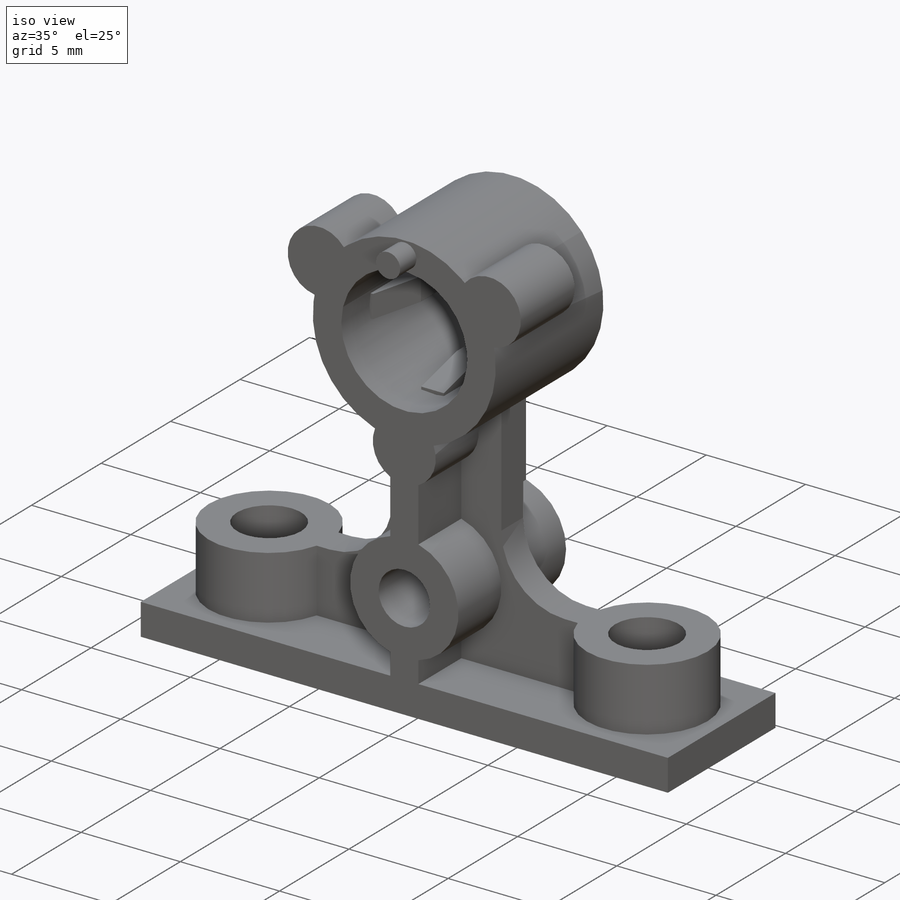
[diagram: iso view]
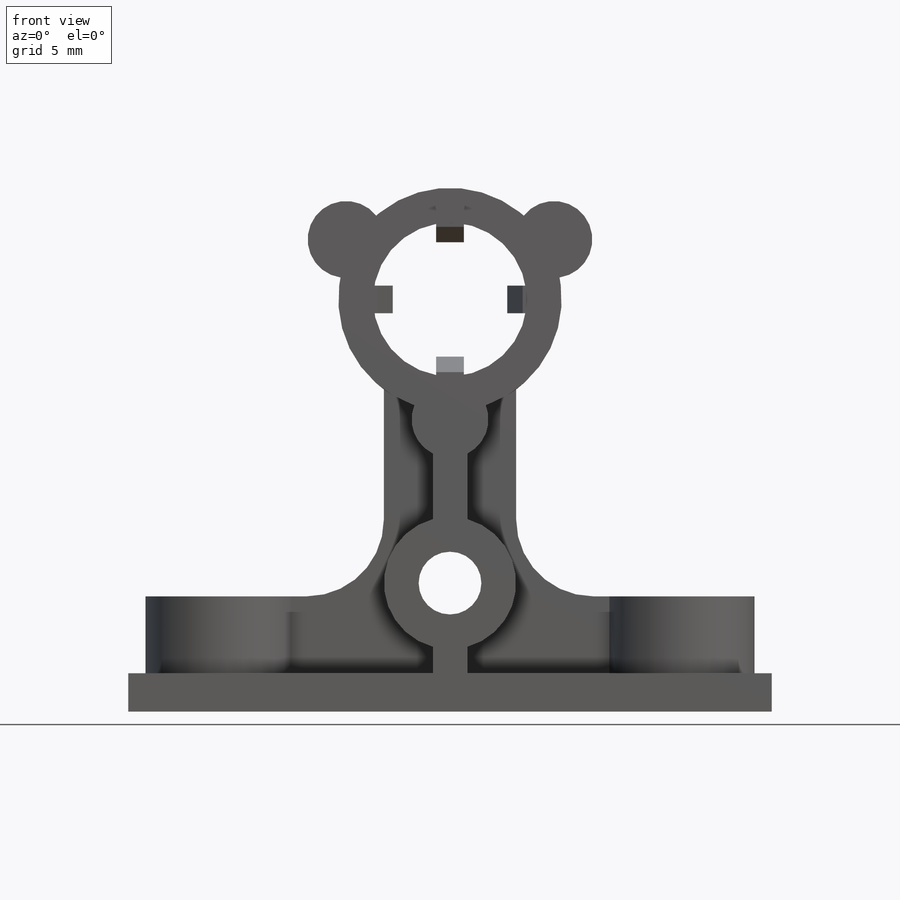
[diagram: front view]
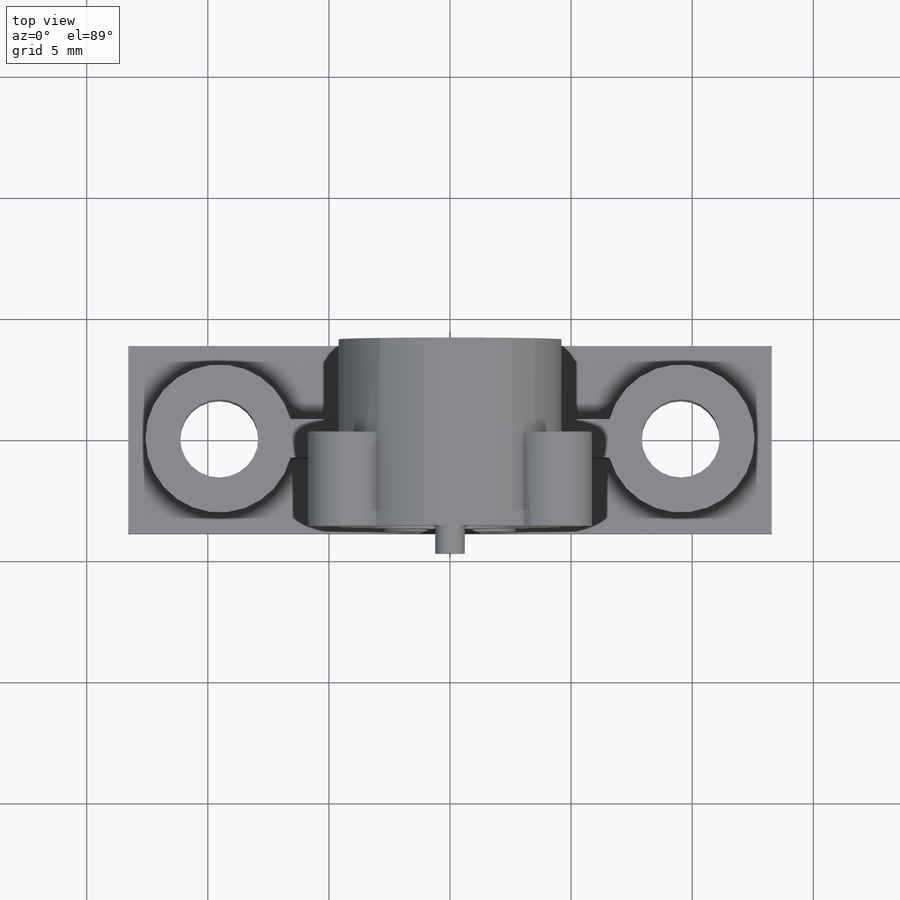
[diagram: top view]
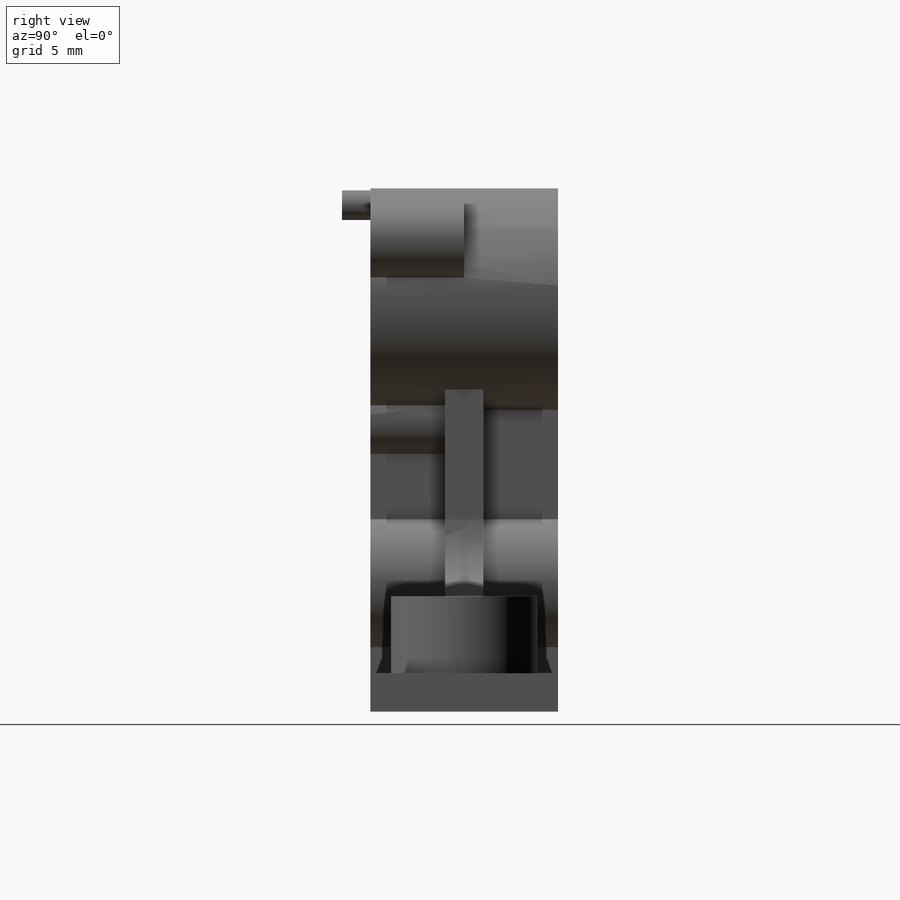
[diagram: right view]
SOLIDWORKS PART (.sldprt)
format: sldprt  version: not decoded by parser v0  size: 389,632 bytes
history: native  units: mm
features: sketch x11, extrude x9, cut_extrude x2, pattern_circular x2, material x1, fillet x1, chamfer x1 (+12 scaffold rows collapsed)
feature tree (39):
  scaffold x12  (default folders/planes/origin — collapsed)
  material  "Material <not specified>"
  sketch  "Sketch1"  dims[D1=1.5875mm D2=26.5684mm]
  extrude  "Boss-Extrude1"  Depth=7.747mm
  sketch  "Sketch3"  dims[D1=1.4224mm D2=12.065mm]
  extrude  "Boss-Extrude2"  Depth=7.747mm
  sketch  "Sketch4"  dims[D1=6.35mm D2=9.2202mm D3=17.018mm]
  extrude  "Boss-Extrude3"  Depth=7.747mm
  sketch  "Sketch5"  dims[D1=5.461mm D2=4.7625mm D3=15.875mm]
  extrude  "Boss-Extrude4"  Depth=1.5748mm
  sketch  "Sketch6"  dims[D1=6.096mm D2=19.05mm]
  extrude  "Boss-Extrude5"  Depth=4.7625mm
  fillet  "Fillet1"  Radius=3.175mm
  sketch  "Sketch7"  dims[D1=5.461mm D2=5.3086mm]
  extrude  "Boss-Extrude6"  [1 undecoded]
  sketch  "Sketch8"  dims[D1=3.2258mm]
  cut_extrude  "Cut-Extrude2"  [1 undecoded]
  sketch  "Sketch9"  dims[D1=2.5908mm]
  cut_extrude  "Cut-Extrude3"  [1 undecoded]
  sketch  "Sketch10"  dims[D1=3.175mm D2=12.065mm]
  extrude  "Boss-Extrude7"  [1 undecoded]
  pattern_circular  "CirPattern1"  Count=3 Angle=360deg
  sketch  "Sketch11"  dims[c1.D1=6.35mm c1.D2=6.35mm c2.D1=~6.997011mm c2.D2=2.3622mm c2.D3=1.143mm]
  extrude  "Boss-Extrude8"  Depth=2.032mm
  chamfer  "Chamfer1"  Distance=2.54mm
  pattern_circular  "CirPattern2"  Count=4 Angle=360deg
  sketch  "Sketch12"  dims[D1=1.2192mm]
  extrude  "Boss-Extrude9"  Depth=1.1684mm
decode coverage: 22 of 26 modeling features carry decoded parameters
note: ~ marks probable driven/reference dimensions
note: 4 parameter values undecoded
summary: no parameter record found for 4 features
note: suppression state not decoded; provenance and decode notes live in map.json
